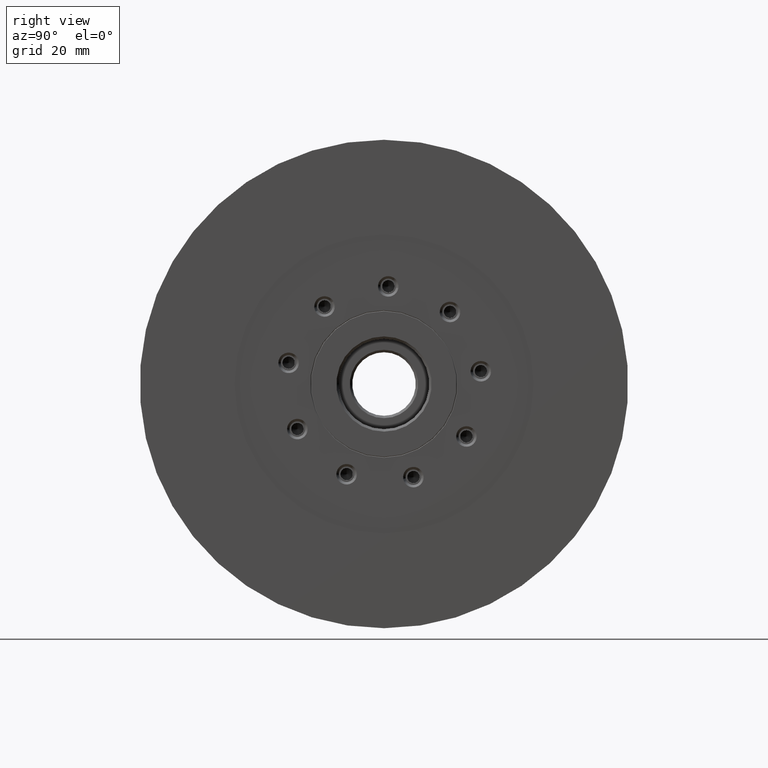
[diagram: clean part render]
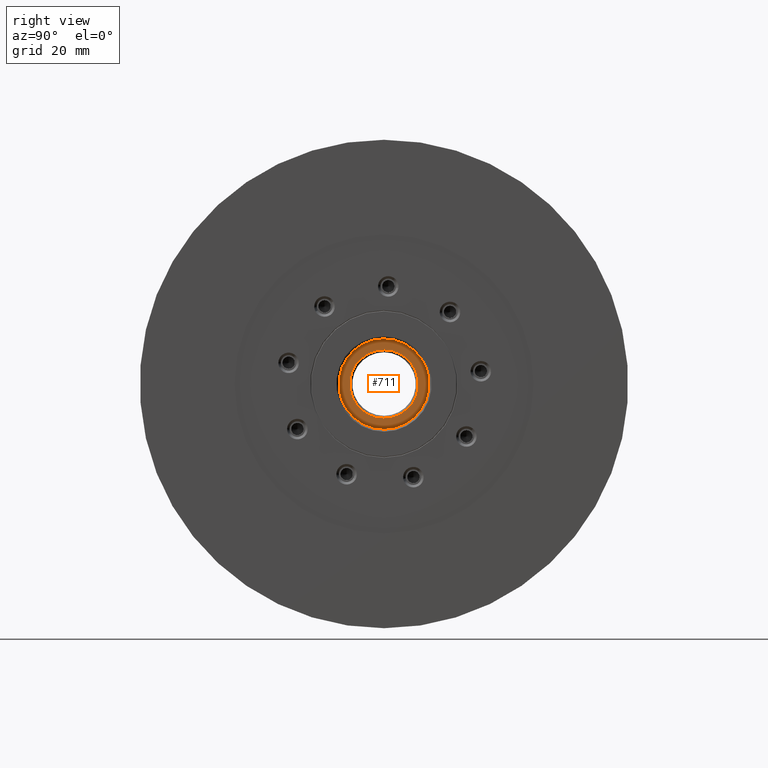
[diagram: same view with one face highlighted and labeled with its STEP entity id]
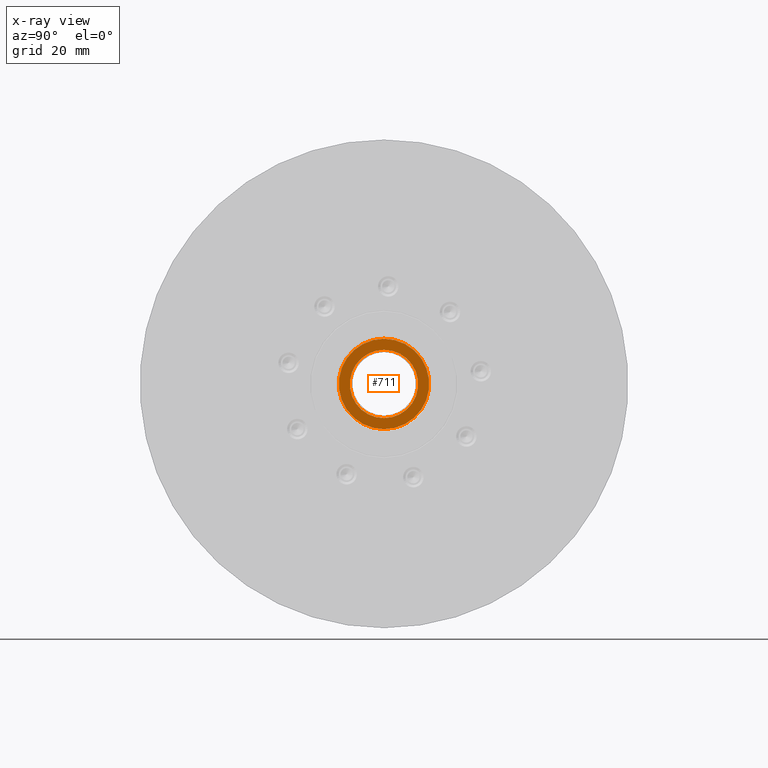
[diagram: x-ray of the same camera — body ghosted, the highlighted face saturated]
A machine part, right view. The second image highlights one B-rep face of the part: STEP entity #711.
The next image is the same camera in x-ray: the body ghosted, the highlighted face saturated — about 0% of this face is hidden behind the body in this view.
In plain terms, the highlighted planar face has unit normal (-1, 0, 0).
Its self-contained STEP definition (entity closure, byte-faithful):
#123 = VERTEX_POINT ( 'NONE', #4437 ) ;
#342 = ORIENTED_EDGE ( 'NONE', *, *, #1761, .F. ) ;
#365 = CARTESIAN_POINT ( 'NONE',  ( -14.00000000000000178, 0.0000000000000000000, 0.0000000000000000000 ) ) ;
#399 = AXIS2_PLACEMENT_3D ( 'NONE', #5363, #4484, #5428 ) ;
#522 = CARTESIAN_POINT ( 'NONE',  ( -14.00000000000000178, 0.0000000000000000000, 0.0000000000000000000 ) ) ;
#599 = FACE_OUTER_BOUND ( 'NONE', #1796, .T. ) ;
#711 = ADVANCED_FACE ( 'NONE', ( #1226, #599 ), #4721, .F. ) ;
#792 = ORIENTED_EDGE ( 'NONE', *, *, #3961, .T. ) ;
#1226 = FACE_BOUND ( 'NONE', #1697, .T. ) ;
#1300 = DIRECTION ( 'NONE',  ( 1.000000000000000000, -0.0000000000000000000, -0.0000000000000000000 ) ) ;
#1348 = EDGE_CURVE ( 'NONE', #2755, #4150, #1629, .T. ) ;
#1401 = CIRCLE ( 'NONE', #399, 9.249999999999998224 ) ;
#1629 = CIRCLE ( 'NONE', #2889, 9.249999999999998224 ) ;
#1697 = EDGE_LOOP ( 'NONE', ( #342, #2004 ) ) ;
#1761 = EDGE_CURVE ( 'NONE', #123, #4662, #2452, .T. ) ;
#1796 = EDGE_LOOP ( 'NONE', ( #4811, #792 ) ) ;
#1820 = DIRECTION ( 'NONE',  ( 1.000000000000000000, -0.0000000000000000000, -0.0000000000000000000 ) ) ;
#2004 = ORIENTED_EDGE ( 'NONE', *, *, #4791, .F. ) ;
#2452 = CIRCLE ( 'NONE', #5125, 6.999999999999997335 ) ;
#2504 = AXIS2_PLACEMENT_3D ( 'NONE', #2578, #3436, #4400 ) ;
#2578 = CARTESIAN_POINT ( 'NONE',  ( -14.00000000000000178, 0.0000000000000000000, 0.0000000000000000000 ) ) ;
#2755 = VERTEX_POINT ( 'NONE', #5297 ) ;
#2871 = DIRECTION ( 'NONE',  ( 0.0000000000000000000, 0.0000000000000000000, 1.000000000000000000 ) ) ;
#2889 = AXIS2_PLACEMENT_3D ( 'NONE', #365, #1300, #5663 ) ;
#3245 = CARTESIAN_POINT ( 'NONE',  ( -14.00000000000000178, 1.132798289211301501E-15, 9.249999999999998224 ) ) ;
#3332 = CARTESIAN_POINT ( 'NONE',  ( -14.00000000000000178, 9.249999999999998224, 0.0000000000000000000 ) ) ;
#3367 = DIRECTION ( 'NONE',  ( -1.000000000000000000, 0.0000000000000000000, 0.0000000000000000000 ) ) ;
#3436 = DIRECTION ( 'NONE',  ( 1.000000000000000000, -0.0000000000000000000, -0.0000000000000000000 ) ) ;
#3595 = AXIS2_PLACEMENT_3D ( 'NONE', #3332, #3367, #2871 ) ;
#3961 = EDGE_CURVE ( 'NONE', #4150, #2755, #1401, .T. ) ;
#4150 = VERTEX_POINT ( 'NONE', #3245 ) ;
#4157 = CARTESIAN_POINT ( 'NONE',  ( -14.00000000000000178, 8.572527594031470232E-16, 6.999999999999997335 ) ) ;
#4400 = DIRECTION ( 'NONE',  ( 0.0000000000000000000, 0.0000000000000000000, -1.000000000000000000 ) ) ;
#4437 = CARTESIAN_POINT ( 'NONE',  ( -14.00000000000000178, 0.0000000000000000000, -6.999999999999997335 ) ) ;
#4450 = DIRECTION ( 'NONE',  ( 0.0000000000000000000, 0.0000000000000000000, -1.000000000000000000 ) ) ;
#4484 = DIRECTION ( 'NONE',  ( 1.000000000000000000, -0.0000000000000000000, -0.0000000000000000000 ) ) ;
#4662 = VERTEX_POINT ( 'NONE', #4157 ) ;
#4721 = PLANE ( 'NONE',  #3595 ) ;
#4791 = EDGE_CURVE ( 'NONE', #4662, #123, #5714, .T. ) ;
#4811 = ORIENTED_EDGE ( 'NONE', *, *, #1348, .T. ) ;
#5125 = AXIS2_PLACEMENT_3D ( 'NONE', #522, #1820, #4450 ) ;
#5297 = CARTESIAN_POINT ( 'NONE',  ( -14.00000000000000178, 0.0000000000000000000, -9.249999999999998224 ) ) ;
#5363 = CARTESIAN_POINT ( 'NONE',  ( -14.00000000000000178, 0.0000000000000000000, 0.0000000000000000000 ) ) ;
#5428 = DIRECTION ( 'NONE',  ( 0.0000000000000000000, 0.0000000000000000000, -1.000000000000000000 ) ) ;
#5663 = DIRECTION ( 'NONE',  ( 0.0000000000000000000, 0.0000000000000000000, -1.000000000000000000 ) ) ;
#5714 = CIRCLE ( 'NONE', #2504, 6.999999999999997335 ) ;